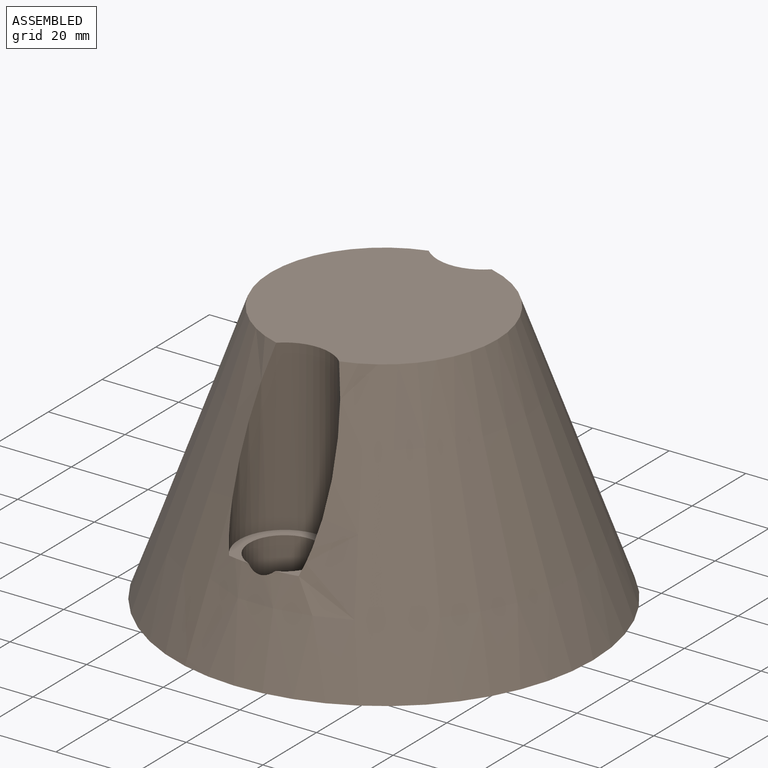
[diagram: assembled view]
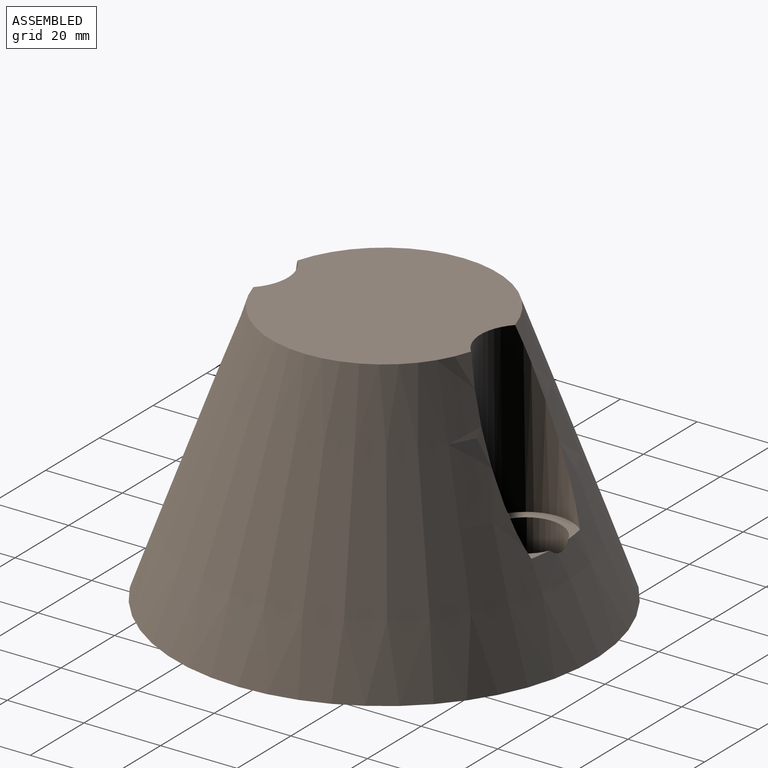
[diagram: assembled view, second angle]
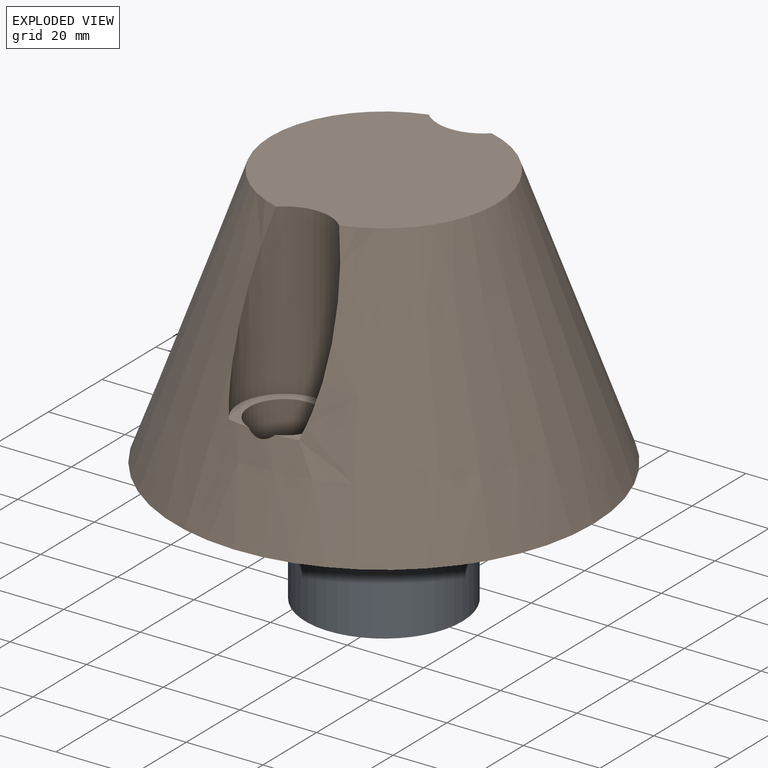
[diagram: exploded view]
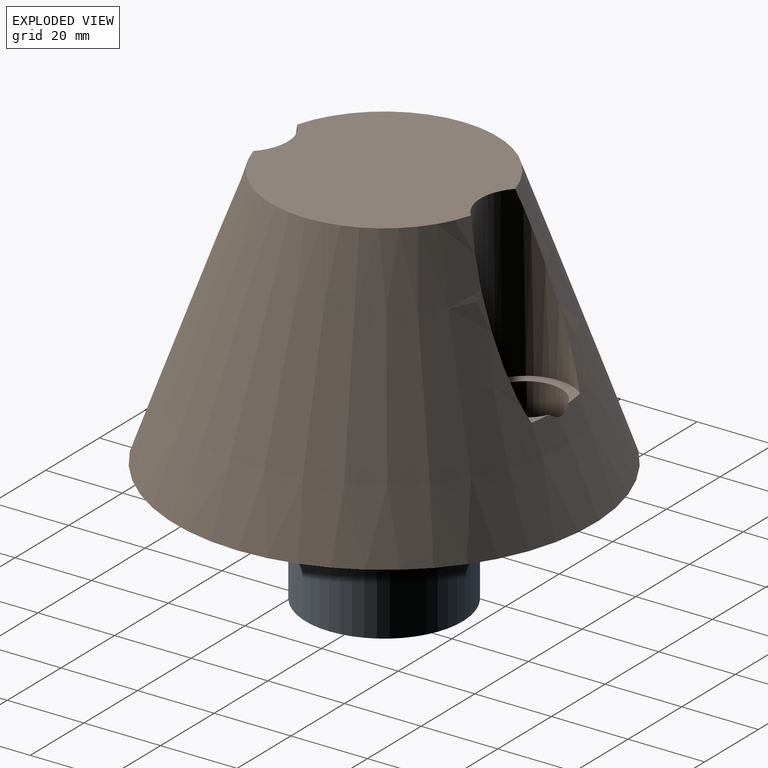
[diagram: exploded view, second angle]
ASSEMBLY  parts=2 mates=2
PART A: 4 faces, bbox 41x41x25.4 mm
  f0: cylinder r=16.42mm len=32.85mm, axis (0,0,-1), area 2621.2mm2, adj f2,f3
  f1: cylinder r=20.51mm len=41.01mm, axis (0,0,-1), area 3272.5mm2, adj f2,f3
  f2: plane 41.01x41.01mm, normal (0,0,1), area 473.5mm2, adj f0,f1
  f3: plane 41.01x41.01mm, normal (0,0,-1), area 473.5mm2, adj f0,f1
PART B: 11 faces, bbox 109.3x109.3x68.9 mm
  f0: plane 59.16x56.83mm, normal (0,0,1), area 2648.7mm2, adj f1,f7,f9
  f1: cone r=29.58mm half-angle=20deg, axis (0,0,-1), area 17318.9mm2, adj f0,f2,f3,f4,f7,f8,f9,f10
  f2: cylinder r=9.19mm len=24.71mm, axis (0,0,-1), area 1419.2mm2, adj f1,f4,f10
  f3: cylinder r=9.19mm len=24.71mm, axis (0,0,-1), area 1419.2mm2, adj f1,f4,f8
  f4: plane 109.31x109.31mm, normal (0,0,-1), area 7533.4mm2, adj f1,f2,f3,f6
  f5: plane 41.01x41.01mm, normal (0,0,-1), area 1320.9mm2, adj f6
  f6: cylinder r=20.51mm len=45.93mm, axis (0,0,1), area 5917.7mm2, adj f4,f5
  f7: cylinder r=11.91mm len=44.2mm, axis (0,0,1), area 1554.7mm2, adj f0,f1,f8
  f8: plane 23.82x20.4mm, normal (0,0,1), area 141.2mm2, adj f1,f3,f7
  f9: cylinder r=11.91mm len=44.2mm, axis (0,0,1), area 1554.7mm2, adj f0,f1,f10
  f10: plane 23.82x20.4mm, normal (0,0,1), area 141.2mm2, adj f1,f2,f9
PLACE A t=(68.31,69.68,0)mm
PLACE B t=(-4.07,-0.49,0)mm fixed
MATE fastened A.f0 <-> B.f1  axis (0,0,-1) through (-4.07,-0.49,0)mm
MATE slider A.f0 <-> B.f1  axis (0,0,-1) through (-4.07,-0.49,12.7)mm
